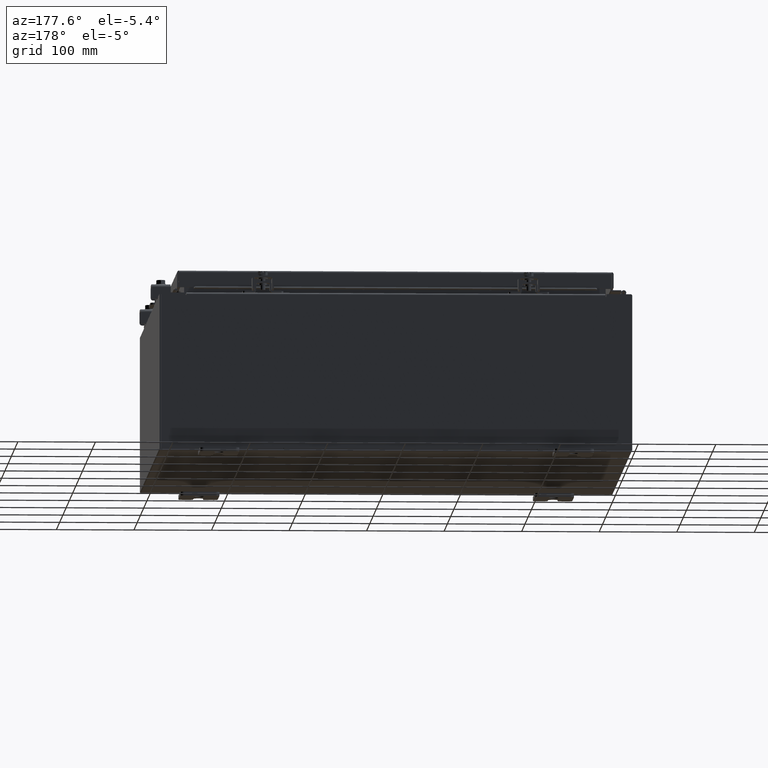
[diagram: clean part render]
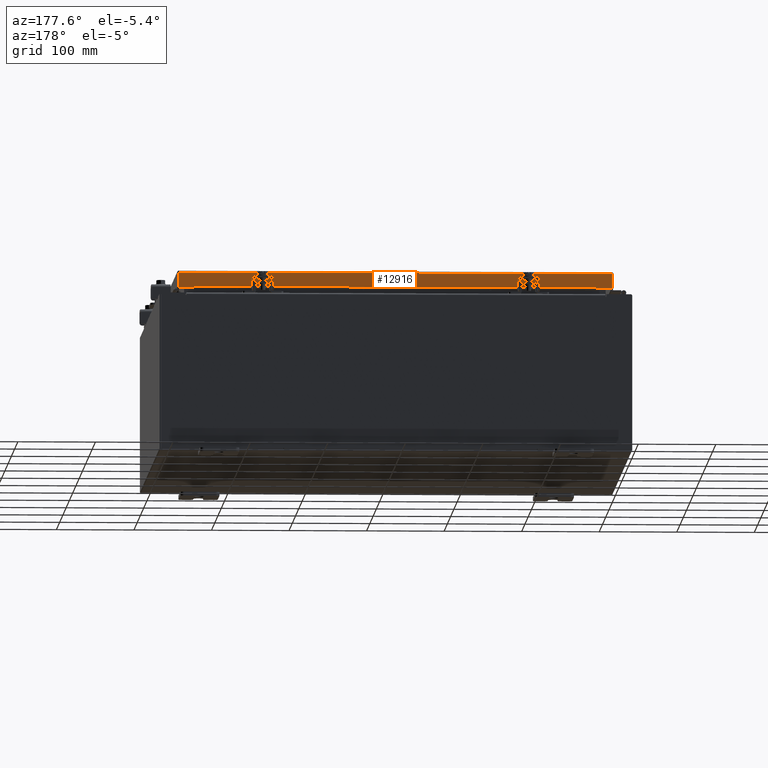
[diagram: same view with one face highlighted and labeled with its STEP entity id]
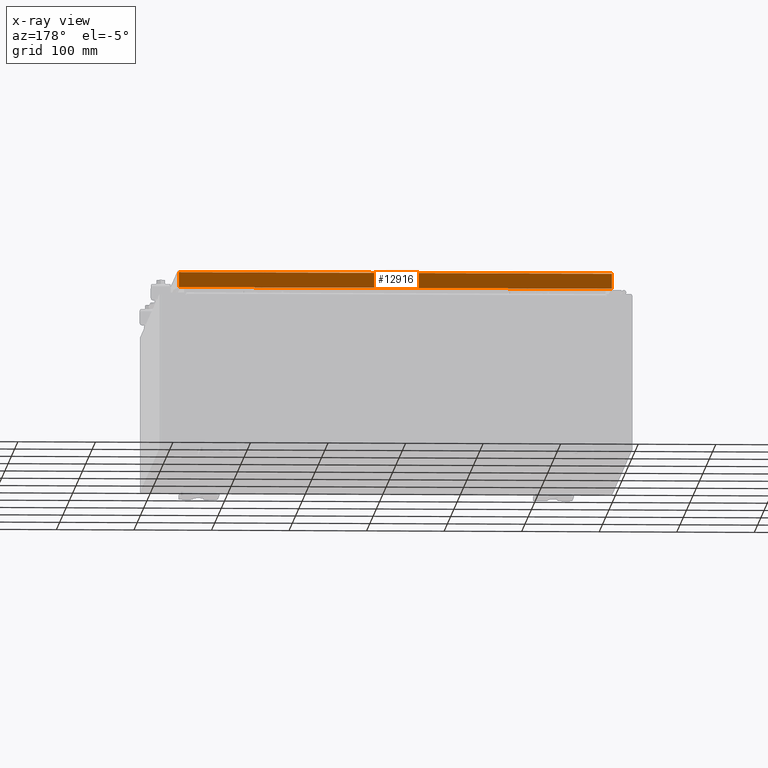
[diagram: x-ray of the same camera — body ghosted, the highlighted face saturated]
A machine part, auxiliary view. The second image highlights one B-rep face of the part: STEP entity #12916.
The next image is the same camera in x-ray: the body ghosted, the highlighted face saturated — about 0% of this face is hidden behind the body in this view.
In plain terms, the highlighted planar face has unit normal (0, -1, -0).
Its self-contained STEP definition (entity closure, byte-faithful):
#945 = VERTEX_POINT ( 'NONE', #13156 ) ;
#1433 = CARTESIAN_POINT ( 'NONE',  ( -3.855938239127258200E-030, 11.09399999999999800, 3.153347883512803100E-014 ) ) ;
#1629 = VECTOR ( 'NONE', #28470, 39.37007874015748100 ) ;
#2155 = VECTOR ( 'NONE', #23120, 39.37007874015748100 ) ;
#3947 = DIRECTION ( 'NONE',  ( 3.475696988576941300E-031, -1.000000000000000000, -2.818880942772350300E-015 ) ) ;
#4339 = CARTESIAN_POINT ( 'NONE',  ( -10.23915786437626700, 11.09399999999999200, -0.8500000000000044200 ) ) ;
#5643 = DIRECTION ( 'NONE',  ( -0.0000000000000000000, 2.818880942772350300E-015, -1.000000000000000000 ) ) ;
#6971 = FACE_OUTER_BOUND ( 'NONE', #18692, .T. ) ;
#7443 = CARTESIAN_POINT ( 'NONE',  ( -11.07800000000000300, 11.09399999999999800, -0.08770000000000007000 ) ) ;
#8154 = CARTESIAN_POINT ( 'NONE',  ( -10.98915786437626900, 11.09399999999999800, -0.07469999999999978000 ) ) ;
#8191 = VERTEX_POINT ( 'NONE', #23520 ) ;
#8820 = LINE ( 'NONE', #10624, #2155 ) ;
#9394 = ORIENTED_EDGE ( 'NONE', *, *, #12554, .F. ) ;
#9615 = VERTEX_POINT ( 'NONE', #13003 ) ;
#9757 = EDGE_CURVE ( 'NONE', #9615, #22114, #20801, .T. ) ;
#10624 = CARTESIAN_POINT ( 'NONE',  ( -11.07800000000000300, 11.09399999999999900, -0.8500000000000024200 ) ) ;
#10638 = DIRECTION ( 'NONE',  ( 0.0000000000000000000, 2.818880942772350300E-015, -1.000000000000000000 ) ) ;
#10854 = EDGE_CURVE ( 'NONE', #21528, #12548, #22709, .T. ) ;
#12548 = VERTEX_POINT ( 'NONE', #24993 ) ;
#12554 = EDGE_CURVE ( 'NONE', #21528, #8191, #17160, .T. ) ;
#12916 = ADVANCED_FACE ( 'NONE', ( #6971 ), #16377, .F. ) ;
#13003 = CARTESIAN_POINT ( 'NONE',  ( -10.98915786437626900, 11.09399999999999900, -0.8500000000000024200 ) ) ;
#13044 = CARTESIAN_POINT ( 'NONE',  ( 10.98915786437626500, 11.09399999999999800, 3.153347883512803100E-014 ) ) ;
#13156 = CARTESIAN_POINT ( 'NONE',  ( 10.23915786437625100, 11.09399999999999200, -0.8500000000000044200 ) ) ;
#13501 = ORIENTED_EDGE ( 'NONE', *, *, #10854, .T. ) ;
#14582 = CARTESIAN_POINT ( 'NONE',  ( 10.98915786437626500, 11.09399999999999800, -0.08770000000000007000 ) ) ;
#15987 = VECTOR ( 'NONE', #10638, 39.37007874015748100 ) ;
#16377 = PLANE ( 'NONE',  #30340 ) ;
#16383 = VECTOR ( 'NONE', #30037, 39.37007874015748100 ) ;
#16638 = ORIENTED_EDGE ( 'NONE', *, *, #17853, .F. ) ;
#17160 = LINE ( 'NONE', #7443, #16383 ) ;
#17853 = EDGE_CURVE ( 'NONE', #945, #12548, #8820, .T. ) ;
#18125 = ORIENTED_EDGE ( 'NONE', *, *, #26238, .F. ) ;
#18198 = EDGE_CURVE ( 'NONE', #22114, #945, #25286, .T. ) ;
#18566 = VECTOR ( 'NONE', #24870, 39.37007874015748100 ) ;
#18692 = EDGE_LOOP ( 'NONE', ( #9394, #13501, #16638, #29582, #19110, #18125 ) ) ;
#19110 = ORIENTED_EDGE ( 'NONE', *, *, #9757, .F. ) ;
#19588 = VECTOR ( 'NONE', #5643, 39.37007874015748100 ) ;
#20801 = LINE ( 'NONE', #31108, #1629 ) ;
#21448 = DIRECTION ( 'NONE',  ( 0.0000000000000000000, 2.818880942772350300E-015, -1.000000000000000000 ) ) ;
#21528 = VERTEX_POINT ( 'NONE', #14582 ) ;
#22114 = VERTEX_POINT ( 'NONE', #4339 ) ;
#22709 = LINE ( 'NONE', #13044, #15987 ) ;
#23120 = DIRECTION ( 'NONE',  ( 1.000000000000000000, -4.379057701015054300E-047, 1.233005954894504400E-016 ) ) ;
#23520 = CARTESIAN_POINT ( 'NONE',  ( -10.98915786437626900, 11.09399999999999800, -0.08770000000000007000 ) ) ;
#24870 = DIRECTION ( 'NONE',  ( 1.000000000000000000, -0.0000000000000000000, -0.0000000000000000000 ) ) ;
#24993 = CARTESIAN_POINT ( 'NONE',  ( 10.98915786437626500, 11.09399999999999900, -0.8499999999999996400 ) ) ;
#25286 = LINE ( 'NONE', #32329, #18566 ) ;
#26238 = EDGE_CURVE ( 'NONE', #8191, #9615, #26303, .T. ) ;
#26303 = LINE ( 'NONE', #8154, #19588 ) ;
#28470 = DIRECTION ( 'NONE',  ( 1.000000000000000000, -4.379057701015054300E-047, 1.233005954894504400E-016 ) ) ;
#29582 = ORIENTED_EDGE ( 'NONE', *, *, #18198, .F. ) ;
#30037 = DIRECTION ( 'NONE',  ( -1.000000000000000000, -3.475696988576942200E-031, -9.473942235605600700E-046 ) ) ;
#30340 = AXIS2_PLACEMENT_3D ( 'NONE', #1433, #3947, #21448 ) ;
#31108 = CARTESIAN_POINT ( 'NONE',  ( -11.07800000000000300, 11.09399999999999900, -0.8500000000000024200 ) ) ;
#32329 = CARTESIAN_POINT ( 'NONE',  ( -10.23915786437626500, 11.09399999999999200, -0.8500000000000044200 ) ) ;